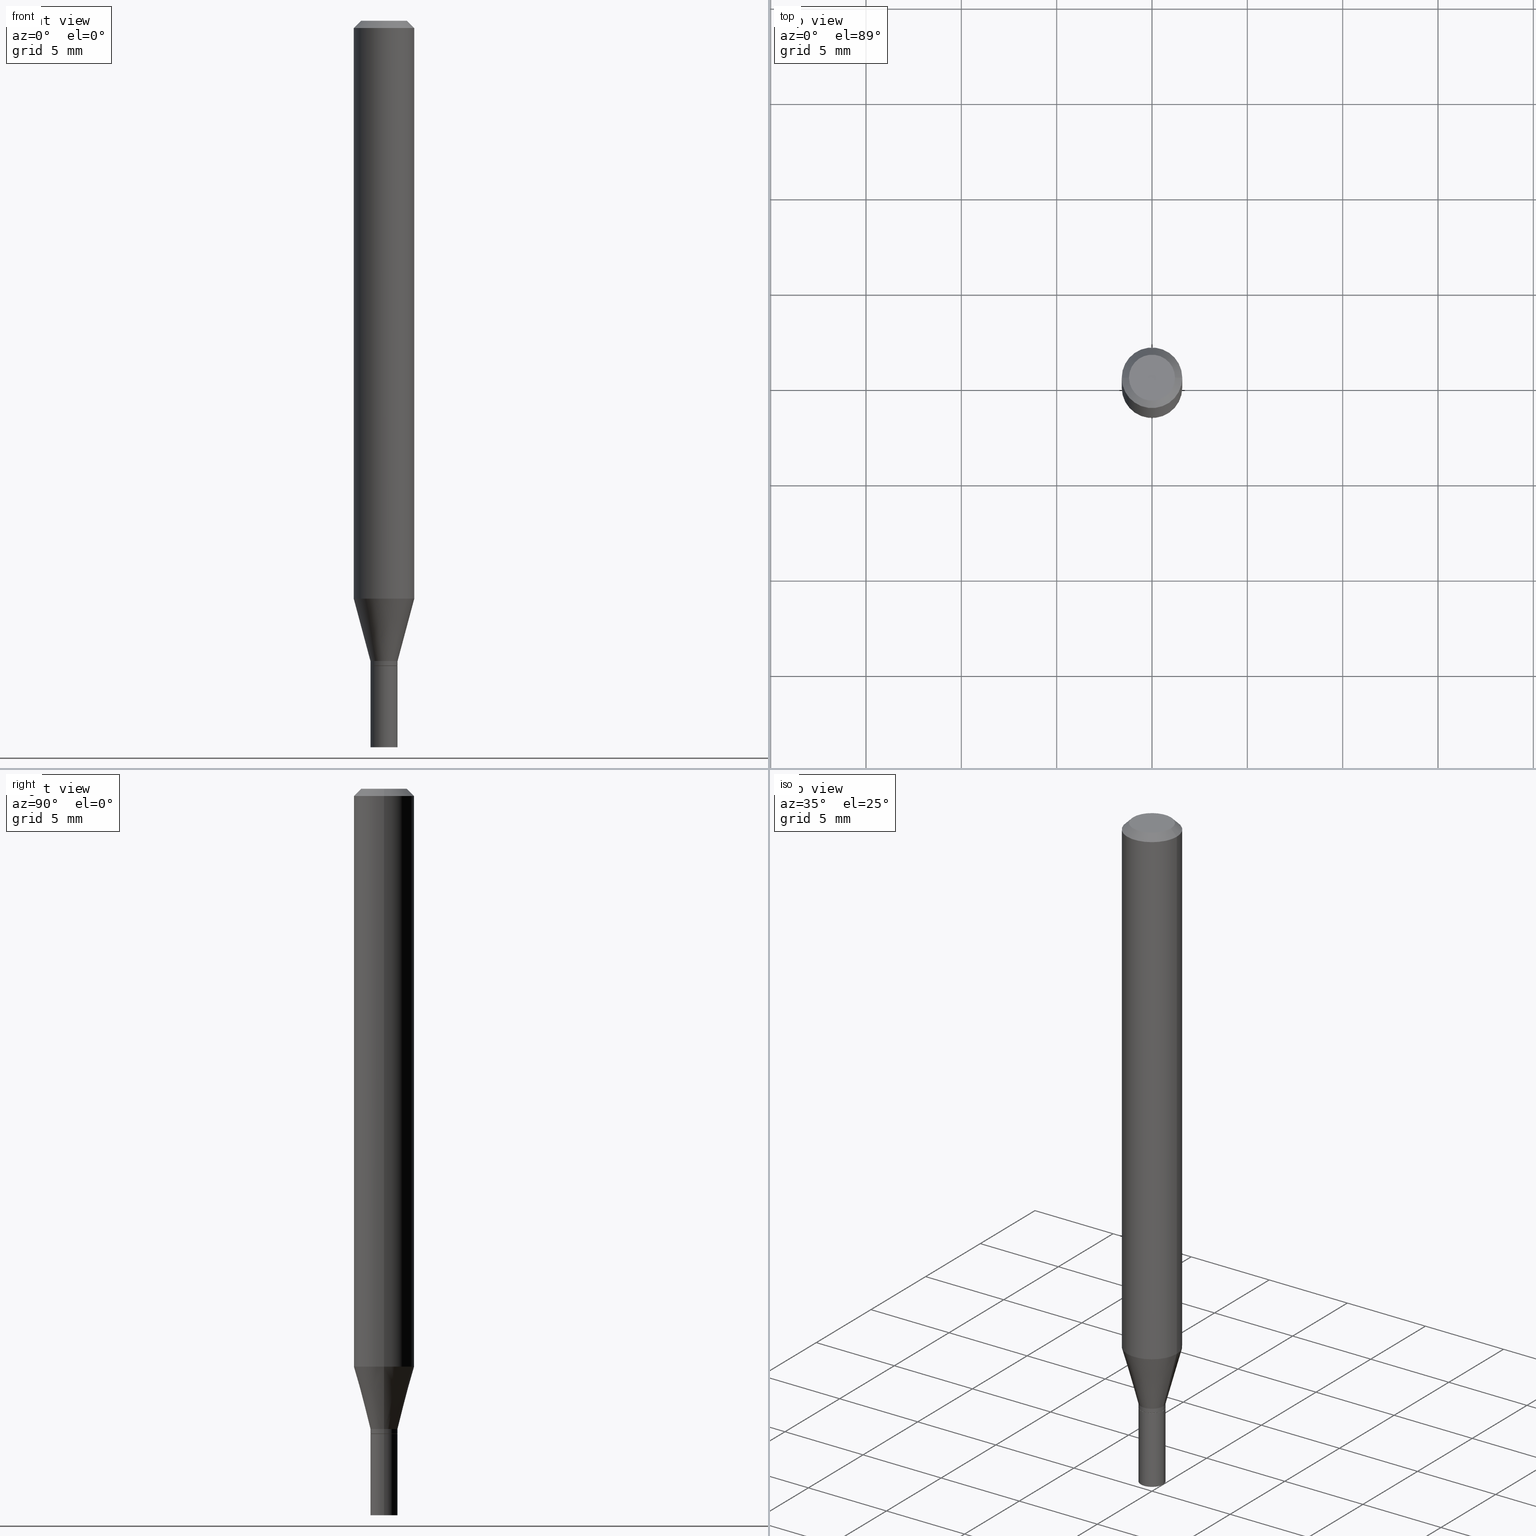
[diagram: canonical four-view strip — front | top / right | iso, engineering-drawing reading convention]
A machine part, canonical four-view strip (front | top / right | iso — engineering-drawing reading convention). The complete STEP part file that produces these views, byte-faithful:
ISO-10303-21;
HEADER;
FILE_DESCRIPTION (( 'STEP AP203' ),
    '1' );
FILE_NAME ('01207.STEP',
    '2024-03-20T00:02:03',
    ( '' ),
    ( '' ),
    'SwSTEP 2.0',
    'SolidWorks 2023',
    '' );
FILE_SCHEMA (( 'CONFIG_CONTROL_DESIGN' ));
ENDSEC;

DATA;
#1 = DIRECTION ( 'NONE',  ( 1.000000000000000000, -6.982962677686283277E-15, 0.000000000000000000 ) ) ;
#2 = AXIS2_PLACEMENT_3D ( 'NONE', #412, #210, #23 ) ;
#3 = PERSON_AND_ORGANIZATION_ROLE ( 'design_supplier' ) ;
#4 = DIRECTION ( 'NONE',  ( 1.000000000000000000, -6.982962677686265922E-15, 4.876176775795935793E-29 ) ) ;
#5 = EDGE_CURVE ( 'NONE', #457, #57, #198, .T. ) ;
#6 = DIRECTION ( 'NONE',  ( 1.000000000000000000, -6.982962677686265922E-15, 4.876176775795935793E-29 ) ) ;
#7 = CARTESIAN_POINT ( 'NONE',  ( -0.02799999999999992426, -4.449955436656821157E-15, -1.331500000000000350 ) ) ;
#8 = AXIS2_PLACEMENT_3D ( 'NONE', #466, #148, #104 ) ;
#9 = AXIS2_PLACEMENT_3D ( 'NONE', #20, #281, #87 ) ;
#10 = ORIENTED_EDGE ( 'NONE', *, *, #125, .T. ) ;
#11 = CYLINDRICAL_SURFACE ( 'NONE', #413, 0.02800000000000000405 ) ;
#12 = ORIENTED_EDGE ( 'NONE', *, *, #455, .T. ) ;
#13 = DIRECTION ( 'NONE',  ( -2.445468806185136597E-29, 3.491481338843145583E-15, 1.000000000000000000 ) ) ;
#14 = CARTESIAN_POINT ( 'NONE',  ( 3.232909761776751088E-29, -4.615738329950638452E-15, -1.322000000000000064 ) ) ;
#15 = APPLICATION_CONTEXT ( 'configuration controlled 3d designs of mechanical parts and assemblies' ) ;
#16 = EDGE_CURVE ( 'NONE', #362, #271, #423, .T. ) ;
#17 = AXIS2_PLACEMENT_3D ( 'NONE', #43, #262, #35 ) ;
#18 =( GEOMETRIC_REPRESENTATION_CONTEXT ( 3 ) GLOBAL_UNCERTAINTY_ASSIGNED_CONTEXT ( ( #130 ) ) GLOBAL_UNIT_ASSIGNED_CONTEXT ( ( #126, #93, #224 ) ) REPRESENTATION_CONTEXT ( 'NONE', 'WORKASPACE' ) );
#19 = DIRECTION ( 'NONE',  ( 2.438088387897960049E-29, -3.491481338843145188E-15, -1.000000000000000000 ) ) ;
#20 = CARTESIAN_POINT ( 'NONE',  ( 3.232909761776751088E-29, -4.615738329950638452E-15, -1.322000000000000064 ) ) ;
#21 = ORIENTED_EDGE ( 'NONE', *, *, #55, .T. ) ;
#22 = APPROVAL ( #465, 'UNSPECIFIED' ) ;
#23 = DIRECTION ( 'NONE',  ( 1.000000000000000000, -6.982962677686270655E-15, 0.000000000000000000 ) ) ;
#24 = VERTEX_POINT ( 'NONE', #226 ) ;
#25 = DIRECTION ( 'NONE',  ( -2.445468806185136597E-29, 3.491481338843145583E-15, 1.000000000000000000 ) ) ;
#26 = ORIENTED_EDGE ( 'NONE', *, *, #260, .F. ) ;
#27 = LINE ( 'NONE', #174, #387 ) ;
#28 = ORIENTED_EDGE ( 'NONE', *, *, #202, .F. ) ;
#29 = ORIENTED_EDGE ( 'NONE', *, *, #348, .T. ) ;
#30 = ADVANCED_FACE ( 'NONE', ( #222 ), #365, .F. ) ;
#31 = CIRCLE ( 'NONE', #8, 0.06250000000000000000 ) ;
#32 = APPROVAL_ROLE ( '' ) ;
#33 = DIRECTION ( 'NONE',  ( 1.000000000000000000, -6.982962677686266711E-15, 0.000000000000000000 ) ) ;
#34 = PRODUCT_DEFINITION_SHAPE ( 'NONE', 'NONE',  #334 ) ;
#35 = DIRECTION ( 'NONE',  ( 1.000000000000000000, -6.982962677686282488E-15, 0.000000000000000000 ) ) ;
#36 = PERSON_AND_ORGANIZATION ( #417, #138 ) ;
#37 = CARTESIAN_POINT ( 'NONE',  ( -0.06250000000000000000, 3.840629472727444916E-16, -0.01499999999999999944 ) ) ;
#38 = EDGE_CURVE ( 'NONE', #388, #212, #214, .T. ) ;
#39 = APPROVAL_DATE_TIME ( #103, #22 ) ;
#40 = AXIS2_PLACEMENT_3D ( 'NONE', #372, #44, #306 ) ;
#41 = ORIENTED_EDGE ( 'NONE', *, *, #455, .F. ) ;
#42 = APPROVAL_PERSON_ORGANIZATION ( #179, #300, #431 ) ;
#43 = CARTESIAN_POINT ( 'NONE',  ( 3.256141715435509832E-29, -4.648907402669649386E-15, -1.331500000000000350 ) ) ;
#44 = DIRECTION ( 'NONE',  ( -2.445468806185136597E-29, 3.491481338843145583E-15, 1.000000000000000000 ) ) ;
#45 = DIRECTION ( 'NONE',  ( -2.445468806185136877E-29, 3.491481338843145188E-15, 1.000000000000000000 ) ) ;
#46 = CIRCLE ( 'NONE', #17, 0.02799999999999992426 ) ;
#47 = CARTESIAN_POINT ( 'NONE',  ( 0.02800000000000000405, -1.955229549752154995E-16, 1.365329497222862141E-30 ) ) ;
#48 = DIRECTION ( 'NONE',  ( -2.445468806185136597E-29, 3.491481338843145583E-15, 1.000000000000000000 ) ) ;
#49 = CARTESIAN_POINT ( 'NONE',  ( -0.04749999999999999362, 3.578768372314212971E-16, 1.163426993633431407E-16 ) ) ;
#50 = AXIS2_PLACEMENT_3D ( 'NONE', #297, #186, #327 ) ;
#51 = LOCAL_TIME ( 20, 2, 3.000000000000000000, #182 ) ;
#52 = FACE_OUTER_BOUND ( 'NONE', #340, .T. ) ;
#53 = EDGE_LOOP ( 'NONE', ( #345, #166, #10, #454 ) ) ;
#54 = EDGE_LOOP ( 'NONE', ( #28, #131, #176, #432 ) ) ;
#55 = EDGE_CURVE ( 'NONE', #242, #192, #295, .T. ) ;
#56 = CARTESIAN_POINT ( 'NONE',  ( 0.06250000000000000000, -4.602625188922709150E-15, -1.193244247138873781 ) ) ;
#57 = VERTEX_POINT ( 'NONE', #112 ) ;
#58 = CIRCLE ( 'NONE', #302, 0.02799999999999992079 ) ;
#59 = CIRCLE ( 'NONE', #2, 0.06250000000000000000 ) ;
#60 = FACE_OUTER_BOUND ( 'NONE', #333, .T. ) ;
#61 = EDGE_LOOP ( 'NONE', ( #426, #370, #353, #136 ) ) ;
#62 = EDGE_CURVE ( 'NONE', #385, #207, #31, .T. ) ;
#63 = ORIENTED_EDGE ( 'NONE', *, *, #414, .F. ) ;
#64 = DATE_AND_TIME ( #427, #216 ) ;
#65 = ORIENTED_EDGE ( 'NONE', *, *, #191, .T. ) ;
#66 = CC_DESIGN_PERSON_AND_ORGANIZATION_ASSIGNMENT ( #36, #189, ( #404 ) ) ;
#67 = AXIS2_PLACEMENT_3D ( 'NONE', #329, #464, #6 ) ;
#68 = DATE_AND_TIME ( #221, #51 ) ;
#69 = CARTESIAN_POINT ( 'NONE',  ( 0.000000000000000000, 0.000000000000000000, 0.000000000000000000 ) ) ;
#70 = PERSON_AND_ORGANIZATION ( #417, #138 ) ;
#71 = FACE_OUTER_BOUND ( 'NONE', #124, .T. ) ;
#72 = ORIENTED_EDGE ( 'NONE', *, *, #390, .F. ) ;
#73 = DIRECTION ( 'NONE',  ( 1.000000000000000000, 0.000000000000000000, 0.000000000000000000 ) ) ;
#74 = AXIS2_PLACEMENT_3D ( 'NONE', #69, #218, #341 ) ;
#75 = CARTESIAN_POINT ( 'NONE',  ( -0.02799999999999992079, 1.989519660128274892E-16, -1.377301825271369692E-30 ) ) ;
#76 = VECTOR ( 'NONE', #384, 39.37007874015748143 ) ;
#77 = LINE ( 'NONE', #197, #177 ) ;
#78 = EDGE_CURVE ( 'NONE', #291, #249, #145, .T. ) ;
#79 = FACE_OUTER_BOUND ( 'NONE', #94, .T. ) ;
#80 = DIRECTION ( 'NONE',  ( -2.445468806185136597E-29, 3.491481338843145583E-15, 1.000000000000000000 ) ) ;
#81 = CLOSED_SHELL ( 'NONE', ( #267, #244, #243, #173, #282, #396, #336, #314, #225, #137, #389, #273 ) ) ;
#82 = VECTOR ( 'NONE', #133, 39.37007874015747433 ) ;
#83 = CARTESIAN_POINT ( 'NONE',  ( -0.02800000000000000405, 1.989519660128280808E-16, -1.377301825271373721E-30 ) ) ;
#84 = ORIENTED_EDGE ( 'NONE', *, *, #78, .T. ) ;
#85 = EDGE_CURVE ( 'NONE', #192, #212, #58, .T. ) ;
#86 = LINE ( 'NONE', #83, #208 ) ;
#87 = DIRECTION ( 'NONE',  ( 1.000000000000000000, -6.982962677686283277E-15, 0.000000000000000000 ) ) ;
#88 = EDGE_LOOP ( 'NONE', ( #280, #283, #96, #204 ) ) ;
#89 = CIRCLE ( 'NONE', #315, 0.02800000000000000405 ) ;
#90 = SECURITY_CLASSIFICATION ( '', '', #250 ) ;
#91 = DIRECTION ( 'NONE',  ( 1.000000000000000000, -6.982962677686279332E-15, 0.000000000000000000 ) ) ;
#92 = ORIENTED_EDGE ( 'NONE', *, *, #116, .F. ) ;
#93 =( NAMED_UNIT ( * ) PLANE_ANGLE_UNIT ( ) SI_UNIT ( $, .RADIAN. ) );
#94 = EDGE_LOOP ( 'NONE', ( #29, #194 ) ) ;
#95 = CYLINDRICAL_SURFACE ( 'NONE', #331, 0.06250000000000000000 ) ;
#96 = ORIENTED_EDGE ( 'NONE', *, *, #422, .F. ) ;
#97 = AXIS2_PLACEMENT_3D ( 'NONE', #378, #438, #153 ) ;
#98 = EDGE_CURVE ( 'NONE', #57, #457, #254, .T. ) ;
#99 = CARTESIAN_POINT ( 'NONE',  ( 3.257364449838602072E-29, -4.650653143339070101E-15, -1.332000000000000073 ) ) ;
#100 = ORIENTED_EDGE ( 'NONE', *, *, #376, .F. ) ;
#101 = APPROVAL_STATUS ( 'not_yet_approved' ) ;
#102 = CARTESIAN_POINT ( 'NONE',  ( 0.06250000000000000000, -4.364351673553916694E-16, 3.047610484872459871E-30 ) ) ;
#103 = DATE_AND_TIME ( #185, #439 ) ;
#104 = DIRECTION ( 'NONE',  ( 1.000000000000000000, -6.982962677686270655E-15, 0.000000000000000000 ) ) ;
#105 = AXIS2_PLACEMENT_3D ( 'NONE', #304, #19, #265 ) ;
#106 = CC_DESIGN_APPROVAL ( #22, ( #404 ) ) ;
#107 = COORDINATED_UNIVERSAL_TIME_OFFSET ( 5, 0, .BEHIND. ) ;
#108 = CARTESIAN_POINT ( 'NONE',  ( 0.02799999999999992079, -1.955229549752149325E-16, 1.365329497222858288E-30 ) ) ;
#109 = DATE_AND_TIME ( #219, #325 ) ;
#110 = DIRECTION ( 'NONE',  ( -2.445468806185136877E-29, 3.491481338843145188E-15, 1.000000000000000000 ) ) ;
#111 = APPLICATION_PROTOCOL_DEFINITION ( 'international standard', 'config_control_design', 1994, #15 ) ;
#112 = CARTESIAN_POINT ( 'NONE',  ( 0.06250000000000000000, -4.888073874380388472E-16, -0.01499999999999999944 ) ) ;
#113 = VECTOR ( 'NONE', #299, 39.37007874015748143 ) ;
#114 = CC_DESIGN_APPROVAL ( #155, ( #90 ) ) ;
#115 = CYLINDRICAL_SURFACE ( 'NONE', #146, 0.02800000000000000405 ) ;
#116 = EDGE_CURVE ( 'NONE', #242, #388, #46, .T. ) ;
#117 = FACE_OUTER_BOUND ( 'NONE', #88, .T. ) ;
#118 = CARTESIAN_POINT ( 'NONE',  ( 3.668203209277705088E-31, -5.237222008264718399E-17, -0.01499999999999999944 ) ) ;
#119 = CARTESIAN_POINT ( 'NONE',  ( -0.06250000000000000000, -3.722100811717253287E-15, -1.193244247138873781 ) ) ;
#120 = AXIS2_PLACEMENT_3D ( 'NONE', #206, #25, #349 ) ;
#121 = MANIFOLD_SOLID_BREP ( 'Body-Move/Copy2[1]', #403 ) ;
#122 = LINE ( 'NONE', #411, #296 ) ;
#123 = LENGTH_MEASURE_WITH_UNIT ( LENGTH_MEASURE( 0.02539999999999999897 ), #312 );
#124 = EDGE_LOOP ( 'NONE', ( #357, #157 ) ) ;
#125 = EDGE_CURVE ( 'NONE', #203, #457, #144, .T. ) ;
#126 =( CONVERSION_BASED_UNIT ( 'INCH', #123 ) LENGTH_UNIT ( ) NAMED_UNIT ( #184 ) );
#127 = ORIENTED_EDGE ( 'NONE', *, *, #310, .F. ) ;
#128 = CIRCLE ( 'NONE', #170, 0.02799999999999992079 ) ;
#129 = DIRECTION ( 'NONE',  ( -1.000000000000000000, 6.982962677686265922E-15, -4.876176775795935793E-29 ) ) ;
#130 = UNCERTAINTY_MEASURE_WITH_UNIT (LENGTH_MEASURE( 1.000000000000000082E-05 ), #126, 'distance_accuracy_value', 'NONE');
#131 = ORIENTED_EDGE ( 'NONE', *, *, #16, .T. ) ;
#132 = CC_DESIGN_PERSON_AND_ORGANIZATION_ASSIGNMENT ( #258, #429, ( #395 ) ) ;
#133 = DIRECTION ( 'NONE',  ( 0.2588190451025213501, 1.565188264969621968E-15, 0.9659258262890682012 ) ) ;
#134 = EDGE_LOOP ( 'NONE', ( #285, #65 ) ) ;
#135 = CARTESIAN_POINT ( 'NONE',  ( -0.06250000000000000000, 4.440892098500626162E-16, -3.074334431409316114E-30 ) ) ;
#136 = ORIENTED_EDGE ( 'NONE', *, *, #163, .F. ) ;
#137 = ADVANCED_FACE ( 'NONE', ( #71 ), #335, .F. ) ;
#138 = ORGANIZATION ( 'UNSPECIFIED', 'UNSPECIFIED', '' ) ;
#139 = COORDINATED_UNIVERSAL_TIME_OFFSET ( 5, 0, .BEHIND. ) ;
#140 = ORIENTED_EDGE ( 'NONE', *, *, #303, .T. ) ;
#141 = APPROVAL_DATE_TIME ( #463, #155 ) ;
#142 = CARTESIAN_POINT ( 'NONE',  ( 3.668203209277704895E-29, -5.237222008264718177E-15, -1.500000000000000222 ) ) ;
#143 = PERSON_AND_ORGANIZATION ( #417, #138 ) ;
#144 = LINE ( 'NONE', #37, #269 ) ;
#145 = CIRCLE ( 'NONE', #276, 0.02750000000000000014 ) ;
#146 = AXIS2_PLACEMENT_3D ( 'NONE', #337, #266, #196 ) ;
#147 = CARTESIAN_POINT ( 'NONE',  ( 0.000000000000000000, 0.000000000000000000, 0.000000000000000000 ) ) ;
#148 = DIRECTION ( 'NONE',  ( -2.445468806185136597E-29, 3.491481338843145583E-15, 1.000000000000000000 ) ) ;
#149 = CC_DESIGN_DATE_AND_TIME_ASSIGNMENT ( #109, #326, ( #334 ) ) ;
#150 = PERSON_AND_ORGANIZATION_ROLE ( 'classification_officer' ) ;
#151 = CARTESIAN_POINT ( 'NONE',  ( 3.668203209277705088E-31, -5.237222008264718399E-17, -0.01499999999999999944 ) ) ;
#152 = CARTESIAN_POINT ( 'NONE',  ( -2.845124421204368749E-45, 4.062083637377592914E-31, 1.163426993633455566E-16 ) ) ;
#153 = DIRECTION ( 'NONE',  ( 1.000000000000000000, -6.982962677686267499E-15, 4.876176775795936353E-29 ) ) ;
#154 = ORIENTED_EDGE ( 'NONE', *, *, #163, .T. ) ;
#155 = APPROVAL ( #101, 'UNSPECIFIED' ) ;
#156 = CARTESIAN_POINT ( 'NONE',  ( 0.000000000000000000, 0.000000000000000000, 0.000000000000000000 ) ) ;
#157 = ORIENTED_EDGE ( 'NONE', *, *, #446, .F. ) ;
#158 = CYLINDRICAL_SURFACE ( 'NONE', #97, 0.02799999999999992079 ) ;
#159 = EDGE_CURVE ( 'NONE', #172, #203, #288, .T. ) ;
#160 = DIRECTION ( 'NONE',  ( 1.000000000000000000, -6.982962677686283277E-15, 0.000000000000000000 ) ) ;
#161 = CIRCLE ( 'NONE', #452, 0.02800000000000000405 ) ;
#162 = DIRECTION ( 'NONE',  ( 2.445468806185136597E-29, -3.491481338843145583E-15, -1.000000000000000000 ) ) ;
#163 = EDGE_CURVE ( 'NONE', #385, #57, #428, .T. ) ;
#164 = EDGE_CURVE ( 'NONE', #388, #242, #187, .T. ) ;
#165 = DIRECTION ( 'NONE',  ( 1.000000000000000000, -6.982962677686266711E-15, 4.876176775795935793E-29 ) ) ;
#166 = ORIENTED_EDGE ( 'NONE', *, *, #348, .F. ) ;
#167 = LINE ( 'NONE', #458, #231 ) ;
#168 = EDGE_LOOP ( 'NONE', ( #175, #21, #41, #190 ) ) ;
#169 = CONICAL_SURFACE ( 'NONE', #247, 0.06250000000000000000, 0.7853981633974445042 ) ;
#170 = AXIS2_PLACEMENT_3D ( 'NONE', #236, #316, #171 ) ;
#171 = DIRECTION ( 'NONE',  ( 1.000000000000000000, -6.982962677686283277E-15, 0.000000000000000000 ) ) ;
#172 = VERTEX_POINT ( 'NONE', #430 ) ;
#173 = ADVANCED_FACE ( 'NONE', ( #364 ), #398, .T. ) ;
#174 = CARTESIAN_POINT ( 'NONE',  ( -0.02799999999999992079, -4.416786363937811012E-15, -1.322000000000000064 ) ) ;
#175 = ORIENTED_EDGE ( 'NONE', *, *, #164, .T. ) ;
#176 = ORIENTED_EDGE ( 'NONE', *, *, #309, .T. ) ;
#177 = VECTOR ( 'NONE', #195, 39.37007874015748143 ) ;
#178 = APPROVAL_PERSON_ORGANIZATION ( #393, #22, #461 ) ;
#179 = PERSON_AND_ORGANIZATION ( #417, #138 ) ;
#180 = CC_DESIGN_PERSON_AND_ORGANIZATION_ASSIGNMENT ( #328, #290, ( #334 ) ) ;
#181 = CARTESIAN_POINT ( 'NONE',  ( 3.232909761776751088E-29, -4.615738329950638452E-15, -1.322000000000000064 ) ) ;
#182 = COORDINATED_UNIVERSAL_TIME_OFFSET ( 5, 0, .BEHIND. ) ;
#183 = DIRECTION ( 'NONE',  ( -2.445468806185136597E-29, 3.491481338843145583E-15, 1.000000000000000000 ) ) ;
#184 = DIMENSIONAL_EXPONENTS ( 1.000000000000000000, 0.000000000000000000, 0.000000000000000000, 0.000000000000000000, 0.000000000000000000, 0.000000000000000000, 0.000000000000000000 ) ;
#185 = CALENDAR_DATE ( 2024, 19, 3 ) ;
#186 = DIRECTION ( 'NONE',  ( -2.445468806185136597E-29, 3.491481338843145583E-15, 1.000000000000000000 ) ) ;
#187 = CIRCLE ( 'NONE', #397, 0.02799999999999992426 ) ;
#188 = VECTOR ( 'NONE', #277, 39.37007874015748143 ) ;
#189 = PERSON_AND_ORGANIZATION_ROLE ( 'creator' ) ;
#190 = ORIENTED_EDGE ( 'NONE', *, *, #38, .F. ) ;
#191 = EDGE_CURVE ( 'NONE', #24, #246, #89, .T. ) ;
#192 = VERTEX_POINT ( 'NONE', #406 ) ;
#193 = FACE_OUTER_BOUND ( 'NONE', #459, .T. ) ;
#194 = ORIENTED_EDGE ( 'NONE', *, *, #159, .T. ) ;
#195 = DIRECTION ( 'NONE',  ( 0.7071067811865656694, -2.468850131082446387E-15, 0.7071067811865294761 ) ) ;
#196 = DIRECTION ( 'NONE',  ( 1.000000000000000000, -6.982962677686266711E-15, 4.876176775795935232E-29 ) ) ;
#197 = CARTESIAN_POINT ( 'NONE',  ( 0.02750000000000000014, -4.842684616975443382E-15, -1.332000000000000073 ) ) ;
#198 = CIRCLE ( 'NONE', #263, 0.06250000000000000000 ) ;
#199 = DIRECTION ( 'NONE',  ( -2.445468806185136597E-29, 3.491481338843145583E-15, 1.000000000000000000 ) ) ;
#200 = APPROVAL_PERSON_ORGANIZATION ( #143, #155, #32 ) ;
#201 = CARTESIAN_POINT ( 'NONE',  ( -2.845124421204368749E-45, 4.062083637377592914E-31, 1.163426993633455566E-16 ) ) ;
#202 = EDGE_CURVE ( 'NONE', #362, #24, #86, .T. ) ;
#203 = VERTEX_POINT ( 'NONE', #49 ) ;
#204 = ORIENTED_EDGE ( 'NONE', *, *, #309, .F. ) ;
#205 = CC_DESIGN_DATE_AND_TIME_ASSIGNMENT ( #64, #256, ( #90 ) ) ;
#206 = CARTESIAN_POINT ( 'NONE',  ( 3.257364449838602072E-29, -4.650653143339070101E-15, -1.332000000000000073 ) ) ;
#207 = VERTEX_POINT ( 'NONE', #119 ) ;
#208 = VECTOR ( 'NONE', #45, 39.37007874015748143 ) ;
#209 = AXIS2_PLACEMENT_3D ( 'NONE', #201, #351, #346 ) ;
#210 = DIRECTION ( 'NONE',  ( -2.445468806185136597E-29, 3.491481338843145583E-15, 1.000000000000000000 ) ) ;
#211 = ORIENTED_EDGE ( 'NONE', *, *, #444, .F. ) ;
#212 = VERTEX_POINT ( 'NONE', #270 ) ;
#213 = APPROVAL_STATUS ( 'not_yet_approved' ) ;
#214 = LINE ( 'NONE', #108, #113 ) ;
#215 = VECTOR ( 'NONE', #110, 39.37007874015748143 ) ;
#216 = LOCAL_TIME ( 20, 2, 3.000000000000000000, #139 ) ;
#217 = COORDINATED_UNIVERSAL_TIME_OFFSET ( 5, 0, .BEHIND. ) ;
#218 = DIRECTION ( 'NONE',  ( -2.445468806185136597E-29, 3.491481338843145583E-15, 1.000000000000000000 ) ) ;
#219 = CALENDAR_DATE ( 2024, 19, 3 ) ;
#220 = DIRECTION ( 'NONE',  ( 1.000000000000000000, -6.982962677686267499E-15, 4.884662768193073002E-29 ) ) ;
#221 = CALENDAR_DATE ( 2024, 19, 3 ) ;
#222 = FACE_OUTER_BOUND ( 'NONE', #320, .T. ) ;
#223 = AXIS2_PLACEMENT_3D ( 'NONE', #142, #435, #294 ) ;
#224 =( NAMED_UNIT ( * ) SI_UNIT ( $, .STERADIAN. ) SOLID_ANGLE_UNIT ( ) );
#225 = ADVANCED_FACE ( 'NONE', ( #79 ), #229, .F. ) ;
#226 = CARTESIAN_POINT ( 'NONE',  ( -0.02800000000000000405, -4.744985609789067093E-15, -1.332000000000000073 ) ) ;
#227 = DIRECTION ( 'NONE',  ( -2.445468806185136597E-29, 3.491481338843145583E-15, 1.000000000000000000 ) ) ;
#228 = EDGE_LOOP ( 'NONE', ( #84, #305, #238, #26 ) ) ;
#229 = PLANE ( 'NONE',  #105 ) ;
#230 = AXIS2_PLACEMENT_3D ( 'NONE', #152, #253, #220 ) ;
#231 = VECTOR ( 'NONE', #245, 39.37007874015748143 ) ;
#232 = DIRECTION ( 'NONE',  ( -1.000000000000000000, 6.982962677686266711E-15, 0.000000000000000000 ) ) ;
#233 = DIRECTION ( 'NONE',  ( 2.445468806185136597E-29, -3.491481338843145583E-15, -1.000000000000000000 ) ) ;
#234 = DIRECTION ( 'NONE',  ( 0.7071067811865447972, -7.319954787623245001E-15, -0.7071067811865501263 ) ) ;
#235 = ORIENTED_EDGE ( 'NONE', *, *, #446, .T. ) ;
#236 = CARTESIAN_POINT ( 'NONE',  ( 3.232909761776751088E-29, -4.615738329950638452E-15, -1.322000000000000064 ) ) ;
#237 = CC_DESIGN_SECURITY_CLASSIFICATION ( #90, ( #404 ) ) ;
#238 = ORIENTED_EDGE ( 'NONE', *, *, #164, .F. ) ;
#239 = CARTESIAN_POINT ( 'NONE',  ( 0.02799999999999992426, -4.844430357644864885E-15, -1.331500000000000350 ) ) ;
#240 = ORIENTED_EDGE ( 'NONE', *, *, #55, .F. ) ;
#241 = CARTESIAN_POINT ( 'NONE',  ( 1.955229549752480400E-16, 0.02799999999999535152, -1.332000000000000073 ) ) ;
#242 = VERTEX_POINT ( 'NONE', #7 ) ;
#243 = ADVANCED_FACE ( 'NONE', ( #410 ), #169, .T. ) ;
#244 = ADVANCED_FACE ( 'NONE', ( #405 ), #379, .T. ) ;
#245 = DIRECTION ( 'NONE',  ( -0.7071067811865656694, 7.493145998870420424E-15, 0.7071067811865294761 ) ) ;
#246 = VERTEX_POINT ( 'NONE', #301 ) ;
#247 = AXIS2_PLACEMENT_3D ( 'NONE', #118, #233, #232 ) ;
#248 = DIRECTION ( 'NONE',  ( -2.445468806185136597E-29, 3.491481338843145583E-15, 1.000000000000000000 ) ) ;
#249 = VERTEX_POINT ( 'NONE', #377 ) ;
#250 = SECURITY_CLASSIFICATION_LEVEL ( 'unclassified' ) ;
#251 = ADVANCED_FACE ( 'NONE', ( #344 ), #11, .T. ) ;
#252 = DIRECTION ( 'NONE',  ( -2.445468806185136877E-29, 3.491481338843145188E-15, 1.000000000000000000 ) ) ;
#253 = DIRECTION ( 'NONE',  ( -2.445468806185136597E-29, 3.491481338843145583E-15, 1.000000000000000000 ) ) ;
#254 = CIRCLE ( 'NONE', #50, 0.06250000000000000000 ) ;
#255 = CONICAL_SURFACE ( 'NONE', #264, 0.06250000000000000000, 0.7853981633974445042 ) ;
#256 = DATE_TIME_ROLE ( 'classification_date' ) ;
#257 = DIRECTION ( 'NONE',  ( -2.445468806185136597E-29, 3.491481338843145583E-15, 1.000000000000000000 ) ) ;
#258 = PERSON_AND_ORGANIZATION ( #417, #138 ) ;
#259 = CARTESIAN_POINT ( 'NONE',  ( 3.257364449838602072E-29, -4.650653143339070101E-15, -1.332000000000000073 ) ) ;
#260 = EDGE_CURVE ( 'NONE', #291, #388, #77, .T. ) ;
#261 = MECHANICAL_CONTEXT ( 'NONE', #15, 'mechanical' ) ;
#262 = DIRECTION ( 'NONE',  ( -2.445468806185136597E-29, 3.491481338843145583E-15, 1.000000000000000000 ) ) ;
#263 = AXIS2_PLACEMENT_3D ( 'NONE', #151, #183, #33 ) ;
#264 = AXIS2_PLACEMENT_3D ( 'NONE', #386, #162, #420 ) ;
#265 = DIRECTION ( 'NONE',  ( -1.000000000000000000, 6.982962677686265922E-15, -4.876176775795935793E-29 ) ) ;
#266 = DIRECTION ( 'NONE',  ( -2.445468806185136597E-29, 3.491481338843145583E-15, 1.000000000000000000 ) ) ;
#267 = ADVANCED_FACE ( 'NONE', ( #307 ), #158, .T. ) ;
#268 = DIRECTION ( 'NONE',  ( 1.000000000000000000, -6.982962677686267499E-15, 4.876176775795936353E-29 ) ) ;
#269 = VECTOR ( 'NONE', #399, 39.37007874015748854 ) ;
#270 = CARTESIAN_POINT ( 'NONE',  ( 0.02799999999999992079, -4.811261284925853951E-15, -1.322000000000000064 ) ) ;
#271 = VERTEX_POINT ( 'NONE', #342 ) ;
#272 = DIRECTION ( 'NONE',  ( 1.000000000000000000, -6.982962677686266711E-15, 4.876176775795935232E-29 ) ) ;
#273 = ADVANCED_FACE ( 'NONE', ( #441 ), #369, .T. ) ;
#274 = DIRECTION ( 'NONE',  ( -2.445468806185136597E-29, 3.491481338843145583E-15, 1.000000000000000000 ) ) ;
#275 = MANIFOLD_SOLID_BREP ( 'Body-Move/Copy2[2]', #81 ) ;
#276 = AXIS2_PLACEMENT_3D ( 'NONE', #259, #402, #436 ) ;
#277 = DIRECTION ( 'NONE',  ( -2.445468806185136877E-29, 3.491481338843145188E-15, 1.000000000000000000 ) ) ;
#278 = PRODUCT_RELATED_PRODUCT_CATEGORY ( 'detail', '', ( #395 ) ) ;
#279 = CC_DESIGN_APPROVAL ( #300, ( #334 ) ) ;
#280 = ORIENTED_EDGE ( 'NONE', *, *, #298, .T. ) ;
#281 = DIRECTION ( 'NONE',  ( -2.445468806185136597E-29, 3.491481338843145583E-15, 1.000000000000000000 ) ) ;
#282 = ADVANCED_FACE ( 'NONE', ( #193 ), #359, .T. ) ;
#283 = ORIENTED_EDGE ( 'NONE', *, *, #202, .T. ) ;
#284 = CARTESIAN_POINT ( 'NONE',  ( 0.02799999999999992079, -4.811261284925853951E-15, -1.322000000000000064 ) ) ;
#285 = ORIENTED_EDGE ( 'NONE', *, *, #422, .T. ) ;
#286 = DIRECTION ( 'NONE',  ( -0.2588190451025213501, 5.211531920934551042E-15, 0.9659258262890682012 ) ) ;
#287 = ORIENTED_EDGE ( 'NONE', *, *, #159, .F. ) ;
#288 = CIRCLE ( 'NONE', #230, 0.04749999999999999362 ) ;
#289 = AXIS2_PLACEMENT_3D ( 'NONE', #14, #227, #160 ) ;
#290 = PERSON_AND_ORGANIZATION_ROLE ( 'creator' ) ;
#291 = VERTEX_POINT ( 'NONE', #308 ) ;
#292 = ADVANCED_FACE ( 'NONE', ( #117 ), #115, .T. ) ;
#293 = SHAPE_DEFINITION_REPRESENTATION ( #34, #447 ) ;
#294 = DIRECTION ( 'NONE',  ( 1.000000000000000000, -6.982962677686262766E-15, 0.000000000000000000 ) ) ;
#295 = LINE ( 'NONE', #75, #215 ) ;
#296 = VECTOR ( 'NONE', #234, 39.37007874015748854 ) ;
#297 = CARTESIAN_POINT ( 'NONE',  ( 3.668203209277705088E-31, -5.237222008264718399E-17, -0.01499999999999999944 ) ) ;
#298 = EDGE_CURVE ( 'NONE', #271, #362, #161, .T. ) ;
#299 = DIRECTION ( 'NONE',  ( -2.445468806185136877E-29, 3.491481338843145188E-15, 1.000000000000000000 ) ) ;
#300 = APPROVAL ( #213, 'UNSPECIFIED' ) ;
#301 = CARTESIAN_POINT ( 'NONE',  ( 0.02800000000000000405, -4.846176098314285600E-15, -1.332000000000000073 ) ) ;
#302 = AXIS2_PLACEMENT_3D ( 'NONE', #181, #257, #1 ) ;
#303 = EDGE_CURVE ( 'NONE', #172, #57, #122, .T. ) ;
#304 = CARTESIAN_POINT ( 'NONE',  ( 3.316907271900976096E-16, 0.04749999999999999362, -1.076740139133766305E-16 ) ) ;
#305 = ORIENTED_EDGE ( 'NONE', *, *, #376, .T. ) ;
#306 = DIRECTION ( 'NONE',  ( 1.000000000000000000, -6.982962677686279332E-15, 0.000000000000000000 ) ) ;
#307 = FACE_OUTER_BOUND ( 'NONE', #168, .T. ) ;
#308 = CARTESIAN_POINT ( 'NONE',  ( 0.02750000000000000014, -4.842684616975443382E-15, -1.332000000000000073 ) ) ;
#309 = EDGE_CURVE ( 'NONE', #271, #246, #375, .T. ) ;
#310 = EDGE_CURVE ( 'NONE', #212, #385, #449, .T. ) ;
#311 = LINE ( 'NONE', #135, #188 ) ;
#312 =( LENGTH_UNIT ( ) NAMED_UNIT ( * ) SI_UNIT ( $, .METRE. ) );
#313 = ORIENTED_EDGE ( 'NONE', *, *, #116, .T. ) ;
#314 = ADVANCED_FACE ( 'NONE', ( #380 ), #255, .T. ) ;
#315 = AXIS2_PLACEMENT_3D ( 'NONE', #339, #13, #440 ) ;
#316 = DIRECTION ( 'NONE',  ( -2.445468806185136597E-29, 3.491481338843145583E-15, 1.000000000000000000 ) ) ;
#317 = CIRCLE ( 'NONE', #425, 0.02750000000000000014 ) ;
#318 = ORIENTED_EDGE ( 'NONE', *, *, #85, .T. ) ;
#319 = CARTESIAN_POINT ( 'NONE',  ( 3.257364449838602072E-29, -4.650653143339070101E-15, -1.332000000000000073 ) ) ;
#320 = EDGE_LOOP ( 'NONE', ( #445, #421 ) ) ;
#321 = PLANE ( 'NONE',  #367 ) ;
#322 = ORIENTED_EDGE ( 'NONE', *, *, #260, .T. ) ;
#323 = APPROVAL_DATE_TIME ( #68, #300 ) ;
#324 = ORIENTED_EDGE ( 'NONE', *, *, #444, .T. ) ;
#325 = LOCAL_TIME ( 20, 2, 3.000000000000000000, #217 ) ;
#326 = DATE_TIME_ROLE ( 'creation_date' ) ;
#327 = DIRECTION ( 'NONE',  ( 1.000000000000000000, -6.982962677686266711E-15, 0.000000000000000000 ) ) ;
#328 = PERSON_AND_ORGANIZATION ( #417, #138 ) ;
#329 = CARTESIAN_POINT ( 'NONE',  ( 3.257364449838602072E-29, -4.650653143339070101E-15, -1.332000000000000073 ) ) ;
#330 = CARTESIAN_POINT ( 'NONE',  ( 3.256141715435509832E-29, -4.648907402669649386E-15, -1.331500000000000350 ) ) ;
#331 = AXIS2_PLACEMENT_3D ( 'NONE', #382, #415, #165 ) ;
#332 = COORDINATED_UNIVERSAL_TIME_OFFSET ( 5, 0, .BEHIND. ) ;
#333 = EDGE_LOOP ( 'NONE', ( #100, #235, #322, #92 ) ) ;
#334 = PRODUCT_DEFINITION ( 'UNKNOWN', '', #404, #418 ) ;
#335 = PLANE ( 'NONE',  #67 ) ;
#336 = ADVANCED_FACE ( 'NONE', ( #52 ), #95, .T. ) ;
#337 = CARTESIAN_POINT ( 'NONE',  ( 0.000000000000000000, 0.000000000000000000, 0.000000000000000000 ) ) ;
#338 = ORIENTED_EDGE ( 'NONE', *, *, #98, .T. ) ;
#339 = CARTESIAN_POINT ( 'NONE',  ( 3.257364449838602072E-29, -4.650653143339070101E-15, -1.332000000000000073 ) ) ;
#340 = EDGE_LOOP ( 'NONE', ( #63, #355, #154, #462 ) ) ;
#341 = DIRECTION ( 'NONE',  ( 1.000000000000000000, -6.982962677686266711E-15, 4.876176775795935793E-29 ) ) ;
#342 = CARTESIAN_POINT ( 'NONE',  ( 0.02800000000000000405, -5.432744963239933676E-15, -1.500000000000000222 ) ) ;
#343 = AXIS2_PLACEMENT_3D ( 'NONE', #319, #274, #356 ) ;
#344 = FACE_OUTER_BOUND ( 'NONE', #54, .T. ) ;
#345 = ORIENTED_EDGE ( 'NONE', *, *, #303, .F. ) ;
#346 = DIRECTION ( 'NONE',  ( 1.000000000000000000, -6.982962677686267499E-15, 4.884662768193073002E-29 ) ) ;
#347 = ORIENTED_EDGE ( 'NONE', *, *, #38, .T. ) ;
#348 = EDGE_CURVE ( 'NONE', #203, #172, #409, .T. ) ;
#349 = DIRECTION ( 'NONE',  ( 1.000000000000000000, -6.982962677686262766E-15, 0.000000000000000000 ) ) ;
#350 = ORIENTED_EDGE ( 'NONE', *, *, #62, .F. ) ;
#351 = DIRECTION ( 'NONE',  ( -2.445468806185136597E-29, 3.491481338843145583E-15, 1.000000000000000000 ) ) ;
#352 = CONICAL_SURFACE ( 'NONE', #9, 0.02799999999999992079, 0.2617993877991500740 ) ;
#353 = ORIENTED_EDGE ( 'NONE', *, *, #98, .F. ) ;
#354 = FACE_OUTER_BOUND ( 'NONE', #381, .T. ) ;
#355 = ORIENTED_EDGE ( 'NONE', *, *, #390, .T. ) ;
#356 = DIRECTION ( 'NONE',  ( 1.000000000000000000, -6.982962677686279332E-15, 0.000000000000000000 ) ) ;
#357 = ORIENTED_EDGE ( 'NONE', *, *, #78, .F. ) ;
#358 = PERSON_AND_ORGANIZATION ( #417, #138 ) ;
#359 = CONICAL_SURFACE ( 'NONE', #289, 0.02799999999999992079, 0.2617993877991500740 ) ;
#360 = DIRECTION ( 'NONE',  ( 1.000000000000000000, -6.982962677686282488E-15, 0.000000000000000000 ) ) ;
#361 = CIRCLE ( 'NONE', #120, 0.02800000000000000405 ) ;
#362 = VERTEX_POINT ( 'NONE', #456 ) ;
#363 = CALENDAR_DATE ( 2024, 19, 3 ) ;
#364 = FACE_OUTER_BOUND ( 'NONE', #61, .T. ) ;
#365 = PLANE ( 'NONE',  #451 ) ;
#366 = AXIS2_PLACEMENT_3D ( 'NONE', #442, #80, #268 ) ;
#367 = AXIS2_PLACEMENT_3D ( 'NONE', #241, #391, #129 ) ;
#368 = DIRECTION ( 'NONE',  ( -2.438088387897960049E-29, 3.491481338843145188E-15, 1.000000000000000000 ) ) ;
#369 = CYLINDRICAL_SURFACE ( 'NONE', #366, 0.02799999999999992079 ) ;
#370 = ORIENTED_EDGE ( 'NONE', *, *, #414, .T. ) ;
#371 = CC_DESIGN_PERSON_AND_ORGANIZATION_ASSIGNMENT ( #358, #150, ( #90 ) ) ;
#372 = CARTESIAN_POINT ( 'NONE',  ( 3.257364449838602072E-29, -4.650653143339070101E-15, -1.332000000000000073 ) ) ;
#373 = CONICAL_SURFACE ( 'NONE', #343, 0.02750000000000000014, 0.7853981633974739252 ) ;
#374 = APPLICATION_CONTEXT ( 'configuration controlled 3d designs of mechanical parts and assemblies' ) ;
#375 = LINE ( 'NONE', #47, #76 ) ;
#376 = EDGE_CURVE ( 'NONE', #249, #242, #167, .T. ) ;
#377 = CARTESIAN_POINT ( 'NONE',  ( -0.02750000000000000014, -4.452604663830931569E-15, -1.332000000000000073 ) ) ;
#378 = CARTESIAN_POINT ( 'NONE',  ( 0.000000000000000000, 0.000000000000000000, 0.000000000000000000 ) ) ;
#379 = CONICAL_SURFACE ( 'NONE', #40, 0.02750000000000000014, 0.7853981633974739252 ) ;
#380 = FACE_OUTER_BOUND ( 'NONE', #53, .T. ) ;
#381 = EDGE_LOOP ( 'NONE', ( #211, #318, #383, #72 ) ) ;
#382 = CARTESIAN_POINT ( 'NONE',  ( 0.000000000000000000, 0.000000000000000000, 0.000000000000000000 ) ) ;
#383 = ORIENTED_EDGE ( 'NONE', *, *, #310, .T. ) ;
#384 = DIRECTION ( 'NONE',  ( -2.445468806185136877E-29, 3.491481338843145188E-15, 1.000000000000000000 ) ) ;
#385 = VERTEX_POINT ( 'NONE', #56 ) ;
#386 = CARTESIAN_POINT ( 'NONE',  ( 3.668203209277705088E-31, -5.237222008264718399E-17, -0.01499999999999999944 ) ) ;
#387 = VECTOR ( 'NONE', #286, 39.37007874015747433 ) ;
#388 = VERTEX_POINT ( 'NONE', #239 ) ;
#389 = ADVANCED_FACE ( 'NONE', ( #60 ), #373, .T. ) ;
#390 = EDGE_CURVE ( 'NONE', #207, #385, #59, .T. ) ;
#391 = DIRECTION ( 'NONE',  ( 2.438088387897960049E-29, -3.491481338843145188E-15, -1.000000000000000000 ) ) ;
#392 = EDGE_LOOP ( 'NONE', ( #240, #313, #347, #419 ) ) ;
#393 = PERSON_AND_ORGANIZATION ( #417, #138 ) ;
#394 = DIRECTION ( 'NONE',  ( -2.445468806185136597E-29, 3.491481338843145583E-15, 1.000000000000000000 ) ) ;
#395 = PRODUCT ( '01207', '01207', '', ( #261 ) ) ;
#396 = ADVANCED_FACE ( 'NONE', ( #354 ), #352, .T. ) ;
#397 = AXIS2_PLACEMENT_3D ( 'NONE', #330, #394, #360 ) ;
#398 = CYLINDRICAL_SURFACE ( 'NONE', #74, 0.06250000000000000000 ) ;
#399 = DIRECTION ( 'NONE',  ( -0.7071067811865447972, 2.468850131082228662E-15, -0.7071067811865501263 ) ) ;
#400 = DIRECTION ( 'NONE',  ( 0.000000000000000000, 0.000000000000000000, 1.000000000000000000 ) ) ;
#401 = CARTESIAN_POINT ( 'NONE',  ( 3.584916967085606921E-29, -5.356492647442320375E-15, -1.500000000000000222 ) ) ;
#402 = DIRECTION ( 'NONE',  ( -2.445468806185136597E-29, 3.491481338843145583E-15, 1.000000000000000000 ) ) ;
#403 = CLOSED_SHELL ( 'NONE', ( #292, #30, #251, #437 ) ) ;
#404 = PRODUCT_DEFINITION_FORMATION_WITH_SPECIFIED_SOURCE ( 'ANY', '', #395, .NOT_KNOWN. ) ;
#405 = FACE_OUTER_BOUND ( 'NONE', #228, .T. ) ;
#406 = CARTESIAN_POINT ( 'NONE',  ( -0.02799999999999992079, -4.069443587827532544E-15, -1.322000000000000064 ) ) ;
#407 = CARTESIAN_POINT ( 'NONE',  ( 3.668203209277704895E-29, -5.237222008264718177E-15, -1.500000000000000222 ) ) ;
#408 = VECTOR ( 'NONE', #252, 39.37007874015748143 ) ;
#409 = CIRCLE ( 'NONE', #209, 0.04749999999999999362 ) ;
#410 = FACE_OUTER_BOUND ( 'NONE', #450, .T. ) ;
#411 = CARTESIAN_POINT ( 'NONE',  ( 0.06250000000000000000, -4.811533449433679005E-16, -0.01499999999999999944 ) ) ;
#412 = CARTESIAN_POINT ( 'NONE',  ( 2.918041584537983972E-29, -4.166190021567316692E-15, -1.193244247138873781 ) ) ;
#413 = AXIS2_PLACEMENT_3D ( 'NONE', #156, #48, #272 ) ;
#414 = EDGE_CURVE ( 'NONE', #207, #457, #311, .T. ) ;
#415 = DIRECTION ( 'NONE',  ( -2.445468806185136597E-29, 3.491481338843145583E-15, 1.000000000000000000 ) ) ;
#416 = ORIENTED_EDGE ( 'NONE', *, *, #125, .F. ) ;
#417 = PERSON ( 'UNSPECIFIED', 'UNSPECIFIED', 'UNSPECIFIED', ('UNSPECIFIED'), ('UNSPECIFIED'), ('UNSPECIFIED') ) ;
#418 = DESIGN_CONTEXT ( 'detailed design', #374, 'design' ) ;
#419 = ORIENTED_EDGE ( 'NONE', *, *, #85, .F. ) ;
#420 = DIRECTION ( 'NONE',  ( -1.000000000000000000, 6.982962677686266711E-15, 0.000000000000000000 ) ) ;
#421 = ORIENTED_EDGE ( 'NONE', *, *, #16, .F. ) ;
#422 = EDGE_CURVE ( 'NONE', #246, #24, #361, .T. ) ;
#423 = CIRCLE ( 'NONE', #223, 0.02800000000000000405 ) ;
#424 = FACE_OUTER_BOUND ( 'NONE', #134, .T. ) ;
#425 = AXIS2_PLACEMENT_3D ( 'NONE', #99, #248, #91 ) ;
#426 = ORIENTED_EDGE ( 'NONE', *, *, #62, .T. ) ;
#427 = CALENDAR_DATE ( 2024, 19, 3 ) ;
#428 = LINE ( 'NONE', #102, #408 ) ;
#429 = PERSON_AND_ORGANIZATION_ROLE ( 'design_owner' ) ;
#430 = CARTESIAN_POINT ( 'NONE',  ( 0.04749999999999999362, -4.035134999187576651E-16, 1.163426993633481204E-16 ) ) ;
#431 = APPROVAL_ROLE ( '' ) ;
#432 = ORIENTED_EDGE ( 'NONE', *, *, #191, .F. ) ;
#433 = AXIS2_PLACEMENT_3D ( 'NONE', #147, #400, #73 ) ;
#434 = APPLICATION_PROTOCOL_DEFINITION ( 'international standard', 'config_control_design', 1994, #374 ) ;
#435 = DIRECTION ( 'NONE',  ( -2.445468806185136597E-29, 3.491481338843145583E-15, 1.000000000000000000 ) ) ;
#436 = DIRECTION ( 'NONE',  ( 1.000000000000000000, -6.982962677686279332E-15, 0.000000000000000000 ) ) ;
#437 = ADVANCED_FACE ( 'NONE', ( #424 ), #321, .F. ) ;
#438 = DIRECTION ( 'NONE',  ( -2.445468806185136597E-29, 3.491481338843145583E-15, 1.000000000000000000 ) ) ;
#439 = LOCAL_TIME ( 20, 2, 3.000000000000000000, #332 ) ;
#440 = DIRECTION ( 'NONE',  ( 1.000000000000000000, -6.982962677686262766E-15, 0.000000000000000000 ) ) ;
#441 = FACE_OUTER_BOUND ( 'NONE', #392, .T. ) ;
#442 = CARTESIAN_POINT ( 'NONE',  ( 0.000000000000000000, 0.000000000000000000, 0.000000000000000000 ) ) ;
#443 = DIRECTION ( 'NONE',  ( 1.000000000000000000, -6.982962677686262766E-15, 0.000000000000000000 ) ) ;
#444 = EDGE_CURVE ( 'NONE', #192, #207, #27, .T. ) ;
#445 = ORIENTED_EDGE ( 'NONE', *, *, #298, .F. ) ;
#446 = EDGE_CURVE ( 'NONE', #249, #291, #317, .T. ) ;
#447 = ADVANCED_BREP_SHAPE_REPRESENTATION ( '01207', ( #121, #275, #433 ), #18 ) ;
#448 = CC_DESIGN_PERSON_AND_ORGANIZATION_ASSIGNMENT ( #70, #3, ( #404 ) ) ;
#449 = LINE ( 'NONE', #284, #82 ) ;
#450 = EDGE_LOOP ( 'NONE', ( #287, #140, #338, #416 ) ) ;
#451 = AXIS2_PLACEMENT_3D ( 'NONE', #401, #368, #4 ) ;
#452 = AXIS2_PLACEMENT_3D ( 'NONE', #407, #199, #443 ) ;
#453 = CARTESIAN_POINT ( 'NONE',  ( -0.06250000000000000000, -1.665191910974919269E-15, -0.01499999999999999944 ) ) ;
#454 = ORIENTED_EDGE ( 'NONE', *, *, #5, .T. ) ;
#455 = EDGE_CURVE ( 'NONE', #212, #192, #128, .T. ) ;
#456 = CARTESIAN_POINT ( 'NONE',  ( -0.02800000000000000405, -4.744985609789067093E-15, -1.500000000000000222 ) ) ;
#457 = VERTEX_POINT ( 'NONE', #453 ) ;
#458 = CARTESIAN_POINT ( 'NONE',  ( -0.02750000000000000014, -4.455253891005042770E-15, -1.332000000000000073 ) ) ;
#459 = EDGE_LOOP ( 'NONE', ( #12, #324, #350, #127 ) ) ;
#460 = LOCAL_TIME ( 20, 2, 3.000000000000000000, #107 ) ;
#461 = APPROVAL_ROLE ( '' ) ;
#462 = ORIENTED_EDGE ( 'NONE', *, *, #5, .F. ) ;
#463 = DATE_AND_TIME ( #363, #460 ) ;
#464 = DIRECTION ( 'NONE',  ( -2.438088387897960049E-29, 3.491481338843145188E-15, 1.000000000000000000 ) ) ;
#465 = APPROVAL_STATUS ( 'not_yet_approved' ) ;
#466 = CARTESIAN_POINT ( 'NONE',  ( 2.918041584537983972E-29, -4.166190021567316692E-15, -1.193244247138873781 ) ) ;
ENDSEC;
END-ISO-10303-21;
